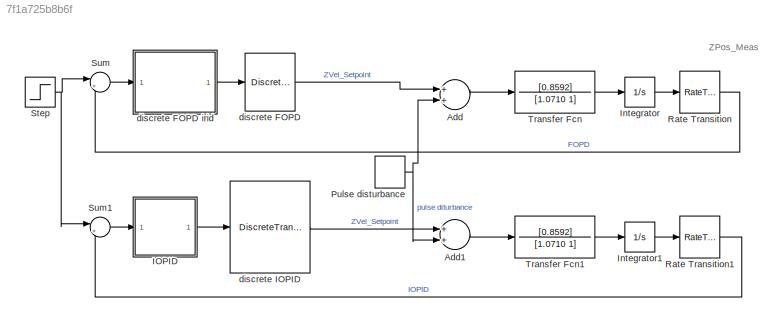
MODEL slx_7f1a725b8b6f
KIND model
CONFIG AbsTol = auto
CONFIG EnableMultiTasking = off
CONFIG FixedStep = 0.01
CONFIG MaxStep = auto
CONFIG MinStep = auto
CONFIG RelTol = 1e-3
CONFIG SampleTimeConstraint = Unconstrained
CONFIG Solver = ode4
CONFIG SolverName = ode4
CONFIG StartTime = 0.0
CONFIG StopTime = 10.0
BLOCK [Sum] Add
  InputSameDT = off
  OutDataTypeStr = Inherit: Inherit via internal rule
  Ports = [2, 1]
  SaturateOnIntegerOverflow = off
BLOCK [Sum] Add1
  InputSameDT = off
  OutDataTypeStr = Inherit: Inherit via internal rule
  Ports = [2, 1]
  SaturateOnIntegerOverflow = off
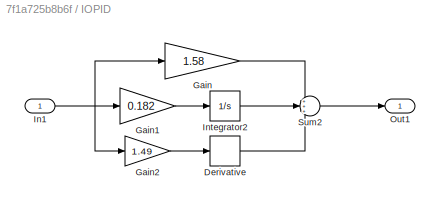
BLOCK [SubSystem] IOPID
  Ports = [1, 1]
  RequestExecContextInheritance = off
BLOCK [Derivative] IOPID/Derivative
BLOCK [Gain] IOPID/Gain
  Gain = 1.58
  OutDataTypeStr = Inherit: Inherit via internal rule
  ParamDataTypeStr = Inherit: Inherit via internal rule
  SaturateOnIntegerOverflow = off
BLOCK [Gain] IOPID/Gain1
  Gain = 0.182
  OutDataTypeStr = Inherit: Inherit via internal rule
  ParamDataTypeStr = Inherit: Inherit via internal rule
  SaturateOnIntegerOverflow = off
BLOCK [Gain] IOPID/Gain2
  Gain = 1.49
  OutDataTypeStr = Inherit: Inherit via internal rule
  ParamDataTypeStr = Inherit: Inherit via internal rule
  SaturateOnIntegerOverflow = off
BLOCK [Inport] IOPID/In1
  IconDisplay = Port number
BLOCK [Integrator] IOPID/Integrator2
  Ports = [1, 1]
BLOCK [Outport] IOPID/Out1
  IconDisplay = Port number
BLOCK [Sum] IOPID/Sum2
  IconShape = round
  InputSameDT = off
  Inputs = +++
  OutDataTypeStr = Inherit: Inherit via internal rule
  Ports = [3, 1]
  SaturateOnIntegerOverflow = off
BLOCK [Integrator] Integrator
  Ports = [1, 1]
BLOCK [Integrator] Integrator1
  Ports = [1, 1]
BLOCK [DiscretePulseGenerator] Pulse disturbance
  Amplitude = 0.01
  Period = 10
  PhaseDelay = 1
  Ports = [0, 1]
  PulseType = Time based
  PulseWidth = 5
BLOCK [RateTransition] Rate Transition
  OutPortSampleTime = 0.01
BLOCK [RateTransition] Rate Transition1
  OutPortSampleTime = 0.01
BLOCK [Step] Step
  After = 0
  SampleTime = 0.01
BLOCK [Sum] Sum
  IconShape = round
  InputSameDT = off
  Inputs = |+-
  OutDataTypeStr = Inherit: Inherit via internal rule
  Ports = [2, 1]
  SaturateOnIntegerOverflow = off
BLOCK [Sum] Sum1
  IconShape = round
  InputSameDT = off
  Inputs = |+-
  OutDataTypeStr = Inherit: Inherit via internal rule
  Ports = [2, 1]
  SaturateOnIntegerOverflow = off
BLOCK [TransferFcn] Transfer Fcn
  Denominator = [1.0710 1]
  Numerator = [0.8592]
BLOCK [TransferFcn] Transfer Fcn1
  Denominator = [1.0710 1]
  Numerator = [0.8592]
BLOCK [DiscreteTransferFcn] discrete FOPD
  Commented = through
  Denominator = [1,-2.94510699389959,3.17934233429781,-1.51000556757338,0.290497513211450,-0.0143972840431492]
  InputPortMap = u0
  Numerator = [0.946963179122833,-2.77792961698899,2.98392102212133,-1.40760552266944,0.267978964388861,-0.0129932830769816]
  Ports = [1, 1]
  SampleTime = 0.01
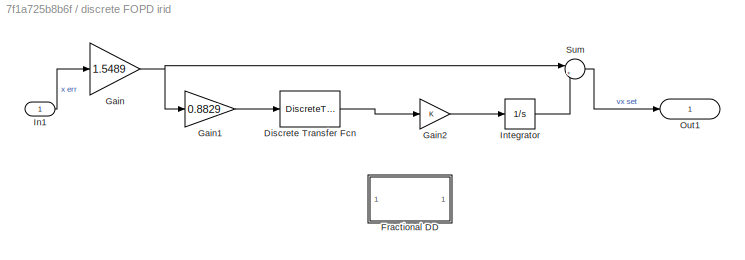
BLOCK [SubSystem] discrete FOPD irid
  Ports = [1, 1]
  RequestExecContextInheritance = off
BLOCK [DiscreteTransferFcn] discrete FOPD irid/Discrete Transfer Fcn
  Denominator = [8.08505564819526e-05,-0.000204449367025327,0.000263365621479140,-0.000214834792194125,8.91860440440781e-05,-1.22283037538058e-05]
  InputPortMap = u0
  Numerator = [1,-3.83915008336134,5.68830152517571,-4.01123857485582,1.31417664909109,-0.152089532241851]
  Ports = [1, 1]
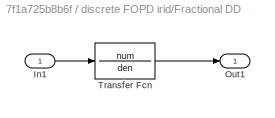
BLOCK [SubSystem] discrete FOPD irid/Fractional DD
  Commented = on
  Ports = [1, 1]
  RequestExecContextInheritance = off
BLOCK [Inport] discrete FOPD irid/Fractional DD/In1
  IconDisplay = Port number
BLOCK [Outport] discrete FOPD irid/Fractional DD/Out1
  IconDisplay = Port number
BLOCK [TransferFcn] discrete FOPD irid/Fractional DD/Transfer Fcn
  Denominator = den
  Numerator = num
BLOCK [Gain] discrete FOPD irid/Gain
  Gain = 1.5489
  OutDataTypeStr = Inherit: Inherit via internal rule
  ParamDataTypeStr = Inherit: Inherit via internal rule
  SaturateOnIntegerOverflow = off
BLOCK [Gain] discrete FOPD irid/Gain1
  Gain = 0.8829
  OutDataTypeStr = Inherit: Inherit via internal rule
  ParamDataTypeStr = Inherit: Inherit via internal rule
  SaturateOnIntegerOverflow = off
BLOCK [Gain] discrete FOPD irid/Gain2
  OutDataTypeStr = Inherit: Inherit via internal rule
  ParamDataTypeStr = Inherit: Inherit via internal rule
  SaturateOnIntegerOverflow = off
BLOCK [Inport] discrete FOPD irid/In1
  IconDisplay = Port number and signal name
BLOCK [Integrator] discrete FOPD irid/Integrator
  Ports = [1, 1]
BLOCK [Outport] discrete FOPD irid/Out1
  IconDisplay = Port number and signal name
BLOCK [Sum] discrete FOPD irid/Sum
  IconShape = round
  InputSameDT = off
  Inputs = |++
  OutDataTypeStr = Inherit: Inherit via internal rule
  Ports = [2, 1]
  SaturateOnIntegerOverflow = off
BLOCK [DiscreteTransferFcn] discrete IOPID
  Commented = through
  Denominator = [1,0,-1]
  InputPortMap = u0
  Numerator = [299.580910000000,-595.998180000000,296.420910000000]
  Ports = [1, 1]
  SampleTime = 0.01
ANNOTATION (root): ZPos_Meas
LINE Add1:1 -> Transfer Fcn1:1
LINE Add:1 -> Transfer Fcn:1
LINE IOPID/Derivative:1 -> IOPID/Sum2:3
LINE IOPID/Gain1:1 -> IOPID/Integrator2:1
LINE IOPID/Gain2:1 -> IOPID/Derivative:1
LINE IOPID/Gain:1 -> IOPID/Sum2:1
NET IOPID/In1:1 -> IOPID/Gain1:1, IOPID/Gain2:1, IOPID/Gain:1
LINE IOPID/Integrator2:1 -> IOPID/Sum2:2
LINE IOPID/Sum2:1 -> IOPID/Out1:1
LINE IOPID:1 -> discrete IOPID:1
LINE Integrator1:1 -> Rate Transition1:1
LINE Integrator:1 -> Rate Transition:1
NET Pulse disturbance:1 -> Add1:2, Add:2
LINE Rate Transition1:1 -> Sum1:2
LINE Rate Transition:1 -> Sum:2
NET Step:1 -> Sum1:1, Sum:1
LINE Sum1:1 -> IOPID:1
LINE Sum:1 -> discrete FOPD irid:1
LINE Transfer Fcn1:1 -> Integrator1:1
LINE Transfer Fcn:1 -> Integrator:1
LINE discrete FOPD irid/Discrete Transfer Fcn:1 -> discrete FOPD irid/Gain2:1
LINE discrete FOPD irid/Fractional DD/In1:1 -> discrete FOPD irid/Fractional DD/Transfer Fcn:1
LINE discrete FOPD irid/Fractional DD/Transfer Fcn:1 -> discrete FOPD irid/Fractional DD/Out1:1
LINE discrete FOPD irid/Gain1:1 -> discrete FOPD irid/Discrete Transfer Fcn:1
LINE discrete FOPD irid/Gain2:1 -> discrete FOPD irid/Integrator:1
NET discrete FOPD irid/Gain:1 -> discrete FOPD irid/Gain1:1, discrete FOPD irid/Sum:1
LINE discrete FOPD irid/In1:1 -> discrete FOPD irid/Gain:1
LINE discrete FOPD irid/Integrator:1 -> discrete FOPD irid/Sum:2
LINE discrete FOPD irid/Sum:1 -> discrete FOPD irid/Out1:1
LINE discrete FOPD irid:1 -> discrete FOPD:1
LINE discrete FOPD:1 -> Add:1
LINE discrete IOPID:1 -> Add1:1
note: NET lines group one-source signal fan-out (src -> all destinations, sorted); 1:1 wires keep LINE
